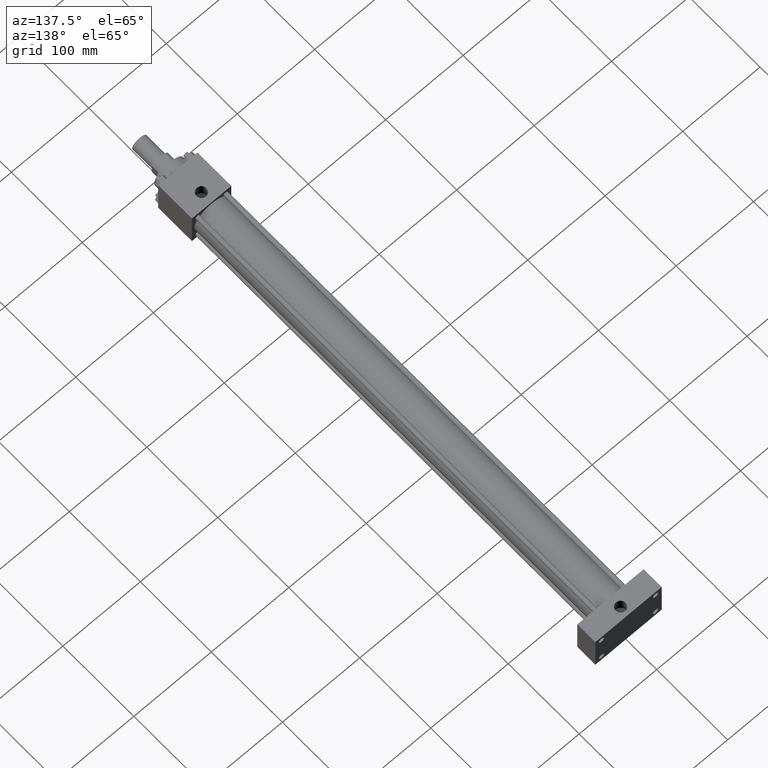
[diagram: clean part render]
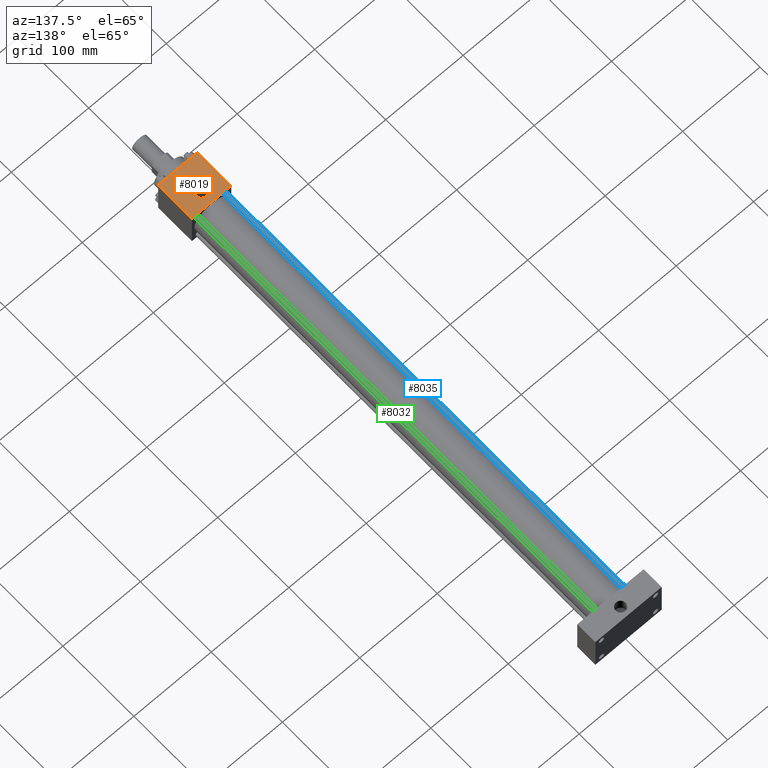
[diagram: same view with three faces highlighted in distinct colors, each labeled with its STEP entity id]
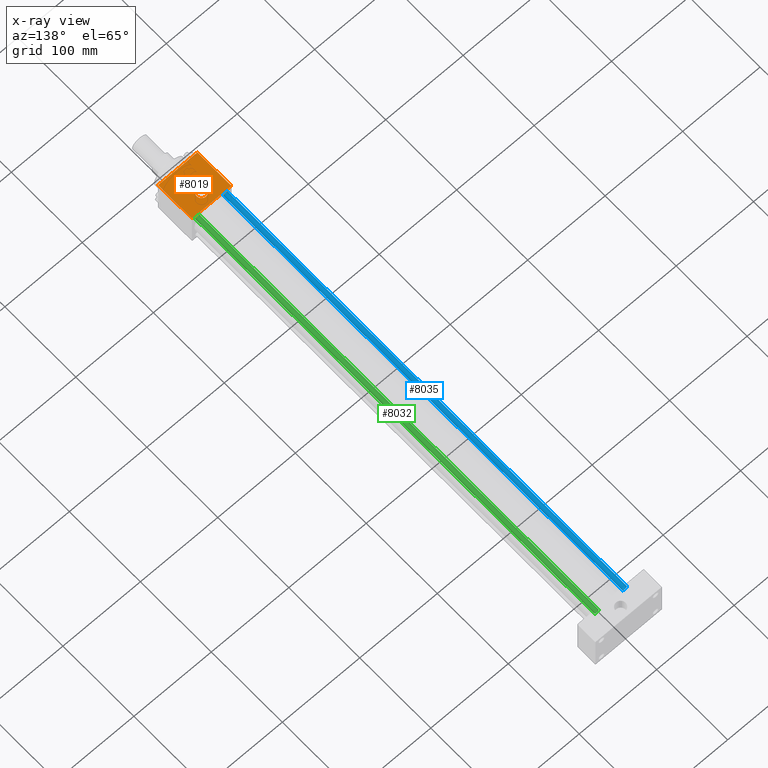
[diagram: x-ray of the same camera — body ghosted, the three highlighted faces saturated]
A machine part, auxiliary view with three faces highlighted in distinct colors.
The next image is the same camera in x-ray (body ghosted, the three faces saturated) — at least one of them is partly hidden behind the body in this view.
Their STEP definitions:

[orange] entity #8019 — the highlighted planar face has unit normal (0, 0, 1).
#494=VERTEX_POINT('',#495);
#495=CARTESIAN_POINT('',(-2.540000000E+001,7.302500000E+001,2.540000000E+001));
#496=EDGE_CURVE('',#501,#494,#497,.T.);
#497=LINE('',#498,#499);
#498=CARTESIAN_POINT('',(2.540000000E+001,7.302500000E+001,2.540000000E+001));
#499=VECTOR('',#500,1.0E+000);
#500=DIRECTION('',(-1.0E+000,0.0E+000,0.0E+000));
#501=VERTEX_POINT('',#502);
#502=CARTESIAN_POINT('',(2.540000000E+001,7.302500000E+001,2.540000000E+001));
#590=FACE_OUTER_BOUND('',#592,.T.);
#591=FACE_BOUND('',#593,.T.);
#592=EDGE_LOOP('',(#594,#595,#596,#597));
#593=EDGE_LOOP('',(#617));
#594=ORIENTED_EDGE('',*,*,#598,.T.);
#595=ORIENTED_EDGE('',*,*,#605,.F.);
#596=ORIENTED_EDGE('',*,*,#612,.F.);
#597=ORIENTED_EDGE('',*,*,#496,.T.);
#598=EDGE_CURVE('',#494,#603,#599,.T.);
#599=LINE('',#600,#601);
#600=CARTESIAN_POINT('',(-2.540000000E+001,7.302500000E+001,2.540000000E+001));
#601=VECTOR('',#602,1.0E+000);
#602=DIRECTION('',(0.0E+000,-1.0E+000,0.0E+000));
#603=VERTEX_POINT('',#604);
#604=CARTESIAN_POINT('',(-2.540000000E+001,2.540000000E+001,2.540000000E+001));
#605=EDGE_CURVE('',#610,#603,#606,.T.);
#606=LINE('',#607,#608);
#607=CARTESIAN_POINT('',(2.540000000E+001,2.540000000E+001,2.540000000E+001));
#608=VECTOR('',#609,1.0E+000);
#609=DIRECTION('',(-1.0E+000,0.0E+000,0.0E+000));
#610=VERTEX_POINT('',#611);
#611=CARTESIAN_POINT('',(2.540000000E+001,2.540000000E+001,2.540000000E+001));
#612=EDGE_CURVE('',#501,#610,#613,.T.);
#613=LINE('',#614,#615);
#614=CARTESIAN_POINT('',(2.540000000E+001,7.302500000E+001,2.540000000E+001));
#615=VECTOR('',#616,1.0E+000);
#616=DIRECTION('',(0.0E+000,-1.0E+000,0.0E+000));
#617=ORIENTED_EDGE('',*,*,#618,.T.);
#618=EDGE_CURVE('',#624,#624,#619,.T.);
#619=CIRCLE('',#620,6.350000000E+000);
#620=AXIS2_PLACEMENT_3D('',#621,#622,#623);
#621=CARTESIAN_POINT('',(0.000000000E+000,5.873750000E+001,2.540000000E+001));
#622=DIRECTION('',(0.0E+000,0.0E+000,-1.0E+000));
#623=DIRECTION('',(1.0E+000,0.0E+000,0.0E+000));
#624=VERTEX_POINT('',#625);
#625=CARTESIAN_POINT('',(6.350000000E+000,5.873750000E+001,2.540000000E+001));
#626=PLANE('',#627);
#627=AXIS2_PLACEMENT_3D('',#628,#629,#630);
#628=CARTESIAN_POINT('',(2.540000000E+001,7.302500000E+001,2.540000000E+001));
#629=DIRECTION('',(0.0E+000,0.0E+000,1.0E+000));
#630=DIRECTION('',(1.0E+000,0.0E+000,0.0E+000));
#8019=ADVANCED_FACE('',(#590,#591),#626,.T.);

[blue] entity #8035 — the highlighted cylindrical surface (bore or boss wall) has radius 2.8575 mm, axis along (0, -1, 0).
#509=EDGE_CURVE('',#515,#515,#510,.T.);
#510=CIRCLE('',#511,2.857500000E+000);
#511=AXIS2_PLACEMENT_3D('',#512,#513,#514);
#512=CARTESIAN_POINT('',(-1.816100000E+001,7.302500000E+001,1.816100000E+001));
#513=DIRECTION('',(0.0E+000,1.0E+000,0.0E+000));
#514=DIRECTION('',(1.0E+000,0.0E+000,0.0E+000));
#515=VERTEX_POINT('',#516);
#516=CARTESIAN_POINT('',(-1.530350000E+001,7.302500000E+001,1.816100000E+001));
#2397=FACE_OUTER_BOUND('',#2399,.T.);
#2398=FACE_BOUND('',#2400,.T.);
#2399=EDGE_LOOP('',(#2401));
#2400=EDGE_LOOP('',(#2402));
#2401=ORIENTED_EDGE('',*,*,#2456,.F.);
#2402=ORIENTED_EDGE('',*,*,#509,.T.);
#2403=CYLINDRICAL_SURFACE('',#2404,2.857500000E+000);
#2404=AXIS2_PLACEMENT_3D('',#2405,#2406,#2407);
#2405=CARTESIAN_POINT('',(-1.816100000E+001,6.350000000E+002,1.816100000E+001));
#2406=DIRECTION('',(0.0E+000,-1.0E+000,0.0E+000));
#2407=DIRECTION('',(0.0E+000,0.0E+000,-1.0E+000));
#2456=EDGE_CURVE('',#2462,#2462,#2457,.T.);
#2457=CIRCLE('',#2458,2.857500000E+000);
#2458=AXIS2_PLACEMENT_3D('',#2459,#2460,#2461);
#2459=CARTESIAN_POINT('',(-1.816100000E+001,6.350000000E+002,1.816100000E+001));
#2460=DIRECTION('',(0.0E+000,1.0E+000,0.0E+000));
#2461=DIRECTION('',(1.0E+000,0.0E+000,0.0E+000));
#2462=VERTEX_POINT('',#2463);
#2463=CARTESIAN_POINT('',(-1.530350000E+001,6.350000000E+002,1.816100000E+001));
#8035=ADVANCED_FACE('',(#2397,#2398),#2403,.T.);

[green] entity #8032 — the highlighted cylindrical surface (bore or boss wall) has radius 2.8575 mm, axis along (0, 1, 0).
#536=EDGE_CURVE('',#542,#542,#537,.T.);
#537=CIRCLE('',#538,2.857500000E+000);
#538=AXIS2_PLACEMENT_3D('',#539,#540,#541);
#539=CARTESIAN_POINT('',(1.816100000E+001,7.302500000E+001,1.816100000E+001));
#540=DIRECTION('',(0.0E+000,-1.0E+000,0.0E+000));
#541=DIRECTION('',(-1.0E+000,0.0E+000,0.0E+000));
#542=VERTEX_POINT('',#543);
#543=CARTESIAN_POINT('',(1.530350000E+001,7.302500000E+001,1.816100000E+001));
#2364=FACE_OUTER_BOUND('',#2366,.T.);
#2365=FACE_BOUND('',#2367,.T.);
#2366=EDGE_LOOP('',(#2368));
#2367=EDGE_LOOP('',(#2369));
#2368=ORIENTED_EDGE('',*,*,#536,.F.);
#2369=ORIENTED_EDGE('',*,*,#2416,.T.);
#2370=CYLINDRICAL_SURFACE('',#2371,2.857500000E+000);
#2371=AXIS2_PLACEMENT_3D('',#2372,#2373,#2374);
#2372=CARTESIAN_POINT('',(1.816100000E+001,7.302500000E+001,1.816100000E+001));
#2373=DIRECTION('',(0.0E+000,1.0E+000,0.0E+000));
#2374=DIRECTION('',(0.0E+000,0.0E+000,-1.0E+000));
#2416=EDGE_CURVE('',#2422,#2422,#2417,.T.);
#2417=CIRCLE('',#2418,2.857500000E+000);
#2418=AXIS2_PLACEMENT_3D('',#2419,#2420,#2421);
#2419=CARTESIAN_POINT('',(1.816100000E+001,6.350000000E+002,1.816100000E+001));
#2420=DIRECTION('',(0.0E+000,-1.0E+000,0.0E+000));
#2421=DIRECTION('',(-1.0E+000,0.0E+000,0.0E+000));
#2422=VERTEX_POINT('',#2423);
#2423=CARTESIAN_POINT('',(1.530350000E+001,6.350000000E+002,1.816100000E+001));
#8032=ADVANCED_FACE('',(#2364,#2365),#2370,.T.);